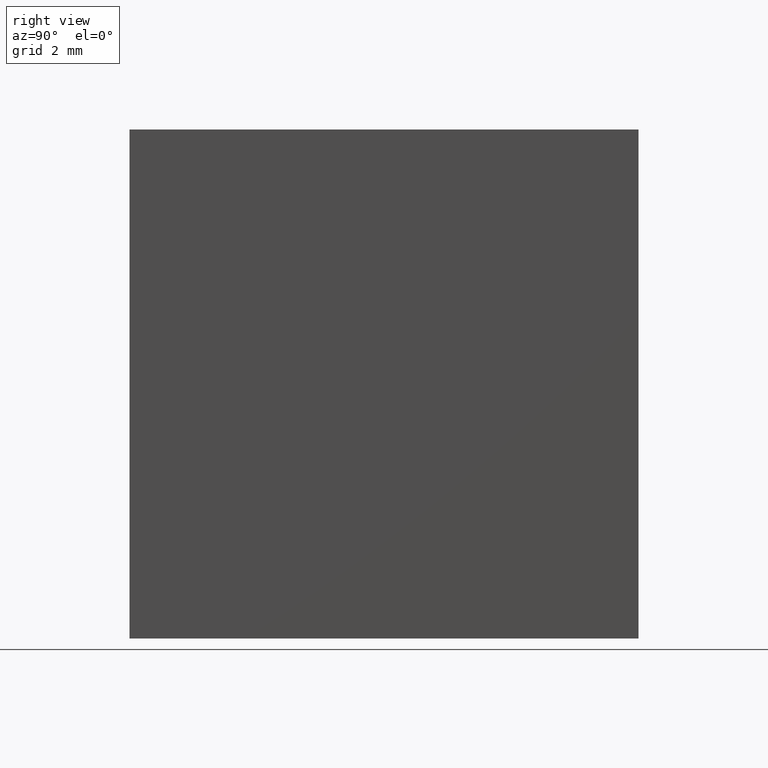
[diagram: clean part render]
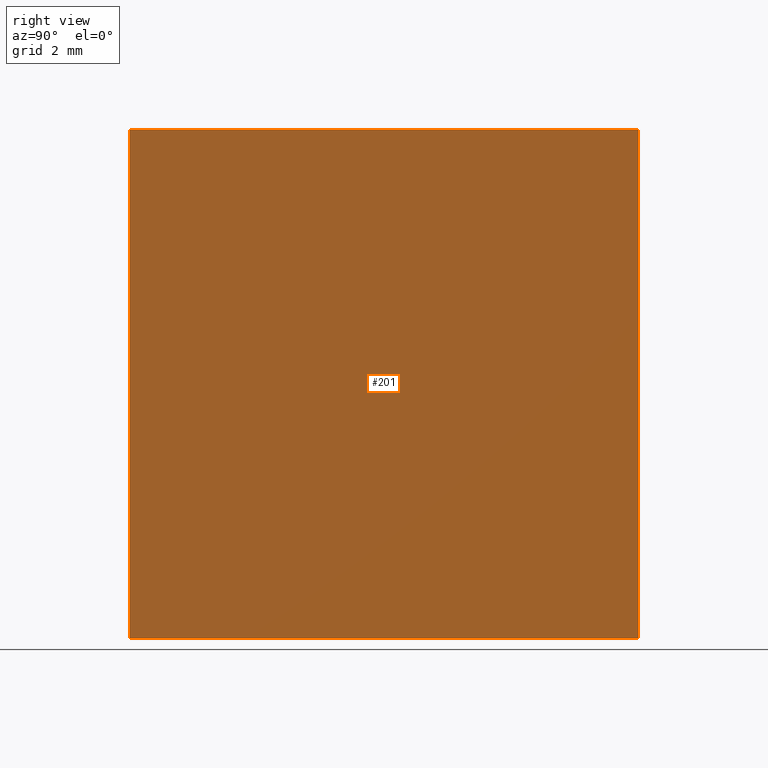
[diagram: same view with one face highlighted and labeled with its STEP entity id]
A machine part, right view. The second image highlights one B-rep face of the part: STEP entity #201.
In plain terms, the highlighted planar face has unit normal (-1, 0, 0).
Its self-contained STEP definition (entity closure, byte-faithful):
#10 = CARTESIAN_POINT ( 'NONE',  ( -16.01479566514873900, 10.00000000000000000, -4.999999999999998200 ) ) ;
#13 = VERTEX_POINT ( 'NONE', #65 ) ;
#23 = CARTESIAN_POINT ( 'NONE',  ( -16.01479566514873600, 10.00000000000000000, 5.000000000000000000 ) ) ;
#26 = VECTOR ( 'NONE', #139, 1000.000000000000000 ) ;
#29 = CARTESIAN_POINT ( 'NONE',  ( -16.01479566514873600, 0.0000000000000000000, 5.000000000000000000 ) ) ;
#47 = VECTOR ( 'NONE', #167, 1000.000000000000000 ) ;
#51 = CARTESIAN_POINT ( 'NONE',  ( -16.01479566514873900, 0.0000000000000000000, -4.999999999999998200 ) ) ;
#63 = FACE_OUTER_BOUND ( 'NONE', #93, .T. ) ;
#65 = CARTESIAN_POINT ( 'NONE',  ( -16.01479566514873900, 10.00000000000000000, -4.999999999999998200 ) ) ;
#68 = VECTOR ( 'NONE', #154, 1000.000000000000000 ) ;
#70 = ORIENTED_EDGE ( 'NONE', *, *, #137, .T. ) ;
#77 = DIRECTION ( 'NONE',  ( 3.469446951953615200E-016, 0.0000000000000000000, 1.000000000000000000 ) ) ;
#79 = CARTESIAN_POINT ( 'NONE',  ( -16.01479566514873900, 10.00000000000000000, -4.999999999999998200 ) ) ;
#84 = LINE ( 'NONE', #10, #26 ) ;
#85 = ORIENTED_EDGE ( 'NONE', *, *, #178, .F. ) ;
#86 = LINE ( 'NONE', #51, #134 ) ;
#91 = CARTESIAN_POINT ( 'NONE',  ( -16.01479566514873900, 0.0000000000000000000, -4.999999999999998200 ) ) ;
#93 = EDGE_LOOP ( 'NONE', ( #70, #189, #85, #181 ) ) ;
#96 = LINE ( 'NONE', #144, #47 ) ;
#104 = VERTEX_POINT ( 'NONE', #23 ) ;
#109 = CARTESIAN_POINT ( 'NONE',  ( -16.01479566514873900, 10.00000000000000000, -4.999999999999998200 ) ) ;
#123 = AXIS2_PLACEMENT_3D ( 'NONE', #109, #188, #77 ) ;
#126 = PLANE ( 'NONE',  #123 ) ;
#134 = VECTOR ( 'NONE', #153, 1000.000000000000000 ) ;
#137 = EDGE_CURVE ( 'NONE', #162, #171, #86, .T. ) ;
#139 = DIRECTION ( 'NONE',  ( -0.0000000000000000000, -1.000000000000000000, -0.0000000000000000000 ) ) ;
#144 = CARTESIAN_POINT ( 'NONE',  ( -16.01479566514873600, 10.00000000000000000, 5.000000000000000000 ) ) ;
#153 = DIRECTION ( 'NONE',  ( -3.469446951953614700E-016, -0.0000000000000000000, -1.000000000000000000 ) ) ;
#154 = DIRECTION ( 'NONE',  ( -3.469446951953614700E-016, -0.0000000000000000000, -1.000000000000000000 ) ) ;
#160 = EDGE_CURVE ( 'NONE', #13, #171, #84, .T. ) ;
#162 = VERTEX_POINT ( 'NONE', #29 ) ;
#167 = DIRECTION ( 'NONE',  ( -0.0000000000000000000, -1.000000000000000000, -0.0000000000000000000 ) ) ;
#171 = VERTEX_POINT ( 'NONE', #91 ) ;
#178 = EDGE_CURVE ( 'NONE', #104, #13, #199, .T. ) ;
#181 = ORIENTED_EDGE ( 'NONE', *, *, #185, .T. ) ;
#185 = EDGE_CURVE ( 'NONE', #104, #162, #96, .T. ) ;
#188 = DIRECTION ( 'NONE',  ( -1.000000000000000000, 0.0000000000000000000, 3.469446951953615200E-016 ) ) ;
#189 = ORIENTED_EDGE ( 'NONE', *, *, #160, .F. ) ;
#199 = LINE ( 'NONE', #79, #68 ) ;
#201 = ADVANCED_FACE ( 'NONE', ( #63 ), #126, .F. ) ;